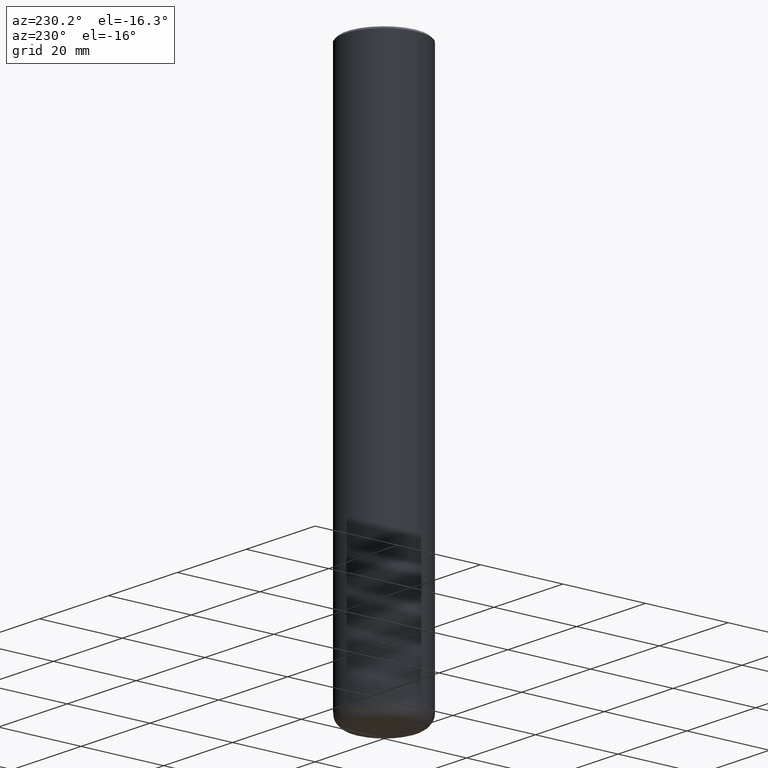
[diagram: clean part render]
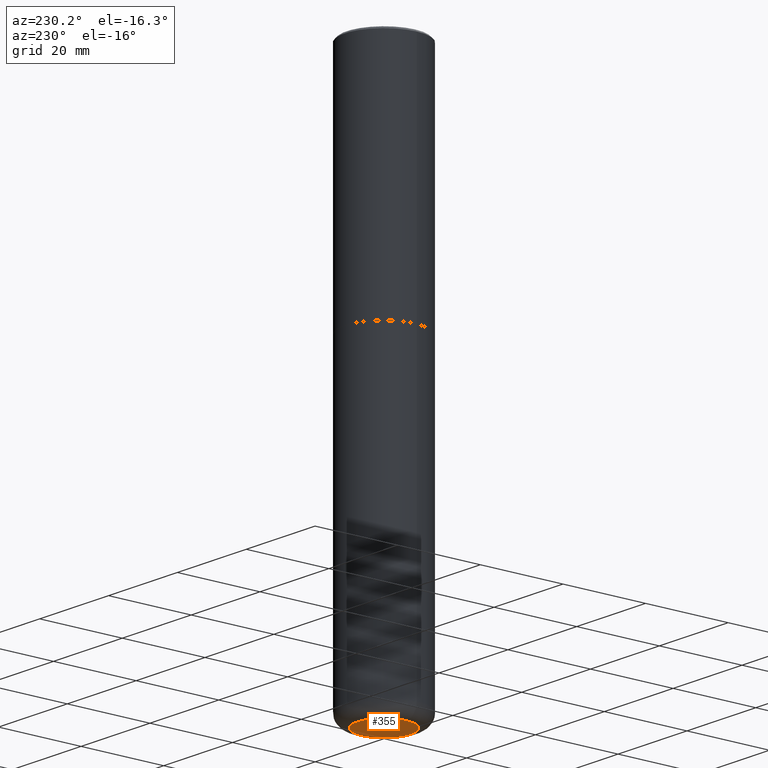
[diagram: same view with one face highlighted and labeled with its STEP entity id]
A machine part, auxiliary view. The second image highlights one B-rep face of the part: STEP entity #355.
In plain terms, the highlighted planar face has unit normal (0, -0, -1).
Its self-contained STEP definition (entity closure, byte-faithful):
#50 = CARTESIAN_POINT ( 'NONE',  ( 1.283871123247196489E-28, -1.833027702892651007E-14, -5.249999999999999112 ) ) ;
#55 = DIRECTION ( 'NONE',  ( 1.000000000000000000, -6.982962677686260400E-15, 0.000000000000000000 ) ) ;
#56 = CIRCLE ( 'NONE', #101, 0.2550000000000000044 ) ;
#62 = DIRECTION ( 'NONE',  ( 1.000000000000000000, -6.982962677686260400E-15, 0.000000000000000000 ) ) ;
#71 = DIRECTION ( 'NONE',  ( 2.438088387897960049E-29, -3.491481338843145188E-15, -1.000000000000000000 ) ) ;
#101 = AXIS2_PLACEMENT_3D ( 'NONE', #344, #372, #55 ) ;
#114 = EDGE_CURVE ( 'NONE', #117, #116, #137, .T. ) ;
#116 = VERTEX_POINT ( 'NONE', #265 ) ;
#117 = VERTEX_POINT ( 'NONE', #164 ) ;
#137 = CIRCLE ( 'NONE', #326, 0.2550000000000000044 ) ;
#149 = ORIENTED_EDGE ( 'NONE', *, *, #291, .F. ) ;
#164 = CARTESIAN_POINT ( 'NONE',  ( -0.2550000000000000044, -1.588257853095161128E-14, -5.249999999999999112 ) ) ;
#185 = ORIENTED_EDGE ( 'NONE', *, *, #114, .F. ) ;
#187 = DIRECTION ( 'NONE',  ( -2.445468806185136597E-29, 3.491481338843145583E-15, 1.000000000000000000 ) ) ;
#221 = AXIS2_PLACEMENT_3D ( 'NONE', #238, #71, #299 ) ;
#230 = FACE_OUTER_BOUND ( 'NONE', #337, .T. ) ;
#238 = CARTESIAN_POINT ( 'NONE',  ( 2.854868159318815822E-28, 4.167294683602726042E-15, -5.249999999999999112 ) ) ;
#265 = CARTESIAN_POINT ( 'NONE',  ( 0.2550000000000000044, -2.011093251173650682E-14, -5.249999999999999112 ) ) ;
#291 = EDGE_CURVE ( 'NONE', #116, #117, #56, .T. ) ;
#299 = DIRECTION ( 'NONE',  ( -1.000000000000000000, 6.982962677686265922E-15, -4.876176775795935793E-29 ) ) ;
#326 = AXIS2_PLACEMENT_3D ( 'NONE', #50, #187, #62 ) ;
#337 = EDGE_LOOP ( 'NONE', ( #149, #185 ) ) ;
#344 = CARTESIAN_POINT ( 'NONE',  ( 1.283871123247196489E-28, -1.833027702892651007E-14, -5.249999999999999112 ) ) ;
#347 = PLANE ( 'NONE',  #221 ) ;
#355 = ADVANCED_FACE ( 'NONE', ( #230 ), #347, .T. ) ;
#372 = DIRECTION ( 'NONE',  ( -2.445468806185136597E-29, 3.491481338843145583E-15, 1.000000000000000000 ) ) ;